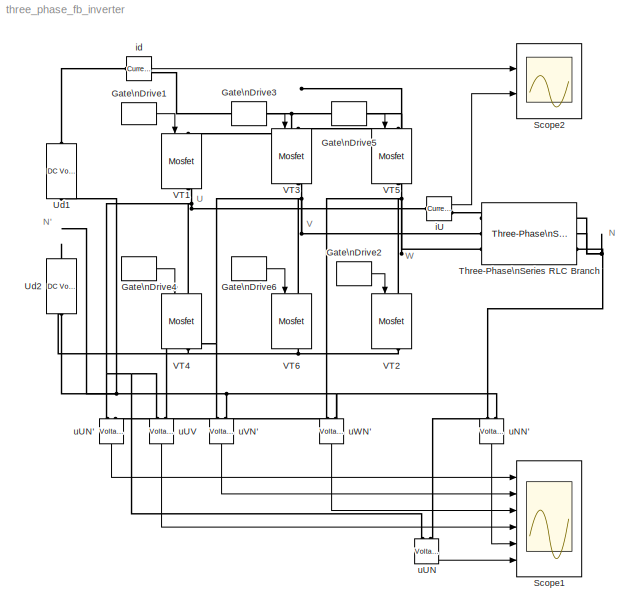
MODEL three_phase_fb_inverter
KIND model
BLOCK [DiscretePulseGenerator] Gate\nDrive1
  Period = 0.02
  Ports = [0, 1]
  PulseType = Time based
  PulseWidth = 49.5
BLOCK [DiscretePulseGenerator] Gate\nDrive2
  Period = 0.02
  PhaseDelay = 0.00333
  Ports = [0, 1]
  PulseType = Time based
  PulseWidth = 49.5
BLOCK [DiscretePulseGenerator] Gate\nDrive3
  Period = 0.02
  PhaseDelay = 0.00667
  Ports = [0, 1]
  PulseType = Time based
  PulseWidth = 49.5
BLOCK [DiscretePulseGenerator] Gate\nDrive4
  Period = 0.02
  PhaseDelay = 0.01
  Ports = [0, 1]
  PulseType = Time based
  PulseWidth = 49.5
BLOCK [DiscretePulseGenerator] Gate\nDrive5
  Period = 0.02
  PhaseDelay = 0.01333
  Ports = [0, 1]
  PulseType = Time based
  PulseWidth = 49.5
BLOCK [DiscretePulseGenerator] Gate\nDrive6
  Period = 0.02
  PhaseDelay = 0.01667
  Ports = [0, 1]
  PulseType = Time based
  PulseWidth = 49.5
BLOCK [Scope] Scope1
  DataFormat = StructureWithTime
  LimitDataPoints = off
  NumInputPorts = 6
  Ports = [6]
  SampleTime = 2e-4
  TimeRange = 0.05
  YMax = 200~200~200~300~200~200
  YMin = -200~-200~-200~-300~-200~-200
  ZoomMode = xonly
BLOCK [Scope] Scope2
  DataFormat = StructureWithTime
  LimitDataPoints = off
  NumInputPorts = 2
  Ports = [2]
  SampleTime = 2e-4
  SaveName = ScopeData1
  TimeRange = 0.05
  YMax = 20~20
  YMin = -20~-20
  ZoomMode = xonly
BLOCK [Reference] Three-Phase\nSeries RLC Branch  REF=powerlib/Elements/Three-Phase\nSeries RLC Branch
  AttributesFormatString = \\n
  Capacitance = inf
  Inductance = 0.02
  LConnTagsString = A|B|C
  LeftPortType = p1
  Measurements = Branch voltages and currents
  PhysicalDomain = powersysdomain
  Ports = [0, 0, 0, 0, 0, 3, 3]
  RConnTagsString = A|B|C
  Resistance = 10
  RightPortType = p1
  SourceBlock = powerlib/Elements/Three-Phase\nSeries RLC Branch
  SourceType = Three-Phase Series RLC Branch
  SubClassName = unknown
BLOCK [Reference] Ud1  REF=powerlib/Electrical\nSources/DC Voltage Source
  Amplitude = 100
  Measurements = None
  Ports = [0, 0, 0, 0, 0, 1, 1]
  ShowPortLabels = on
  SourceBlock = powerlib/Electrical\nSources/DC Voltage Source
  SourceType = DC Voltage Source
BLOCK [Reference] Ud2  REF=powerlib/Electrical\nSources/DC Voltage Source
  Amplitude = 100
  Measurements = None
  Ports = [0, 0, 0, 0, 0, 1, 1]
  ShowPortLabels = on
  SourceBlock = powerlib/Electrical\nSources/DC Voltage Source
  SourceType = DC Voltage Source
BLOCK [Reference] VT1  REF=powerlib/Power\nElectronics/Mosfet
  Cs = 1e-6
  IC = 0
  Lon = 1e-7
  Measurements = on
  Ports = [1, 1, 0, 0, 0, 1, 1]
  Rd = .01
  Ron = 0.01
  Rs = 5
  ShowPortLabels = on
  SourceBlock = powerlib/Power\nElectronics/Mosfet
  SourceType = Mosfet
BLOCK [Reference] VT2  REF=powerlib/Power\nElectronics/Mosfet
  Cs = 1e-6
  IC = 0
  Lon = 1e-7
  Measurements = on
  Ports = [1, 1, 0, 0, 0, 1, 1]
  Rd = .01
  Ron = 0.01
  Rs = 5
  ShowPortLabels = on
  SourceBlock = powerlib/Power\nElectronics/Mosfet
  SourceType = Mosfet
BLOCK [Reference] VT3  REF=powerlib/Power\nElectronics/Mosfet
  Cs = 1e-6
  IC = 0
  Lon = 1e-7
  Measurements = on
  Ports = [1, 1, 0, 0, 0, 1, 1]
  Rd = .01
  Ron = 0.01
  Rs = 5
  ShowPortLabels = on
  SourceBlock = powerlib/Power\nElectronics/Mosfet
  SourceType = Mosfet
BLOCK [Reference] VT4  REF=powerlib/Power\nElectronics/Mosfet
  Cs = 1e-6
  IC = 0
  Lon = 1e-7
  Measurements = on
  Ports = [1, 1, 0, 0, 0, 1, 1]
  Rd = .01
  Ron = 0.01
  Rs = 5
  ShowPortLabels = on
  SourceBlock = powerlib/Power\nElectronics/Mosfet
  SourceType = Mosfet
BLOCK [Reference] VT5  REF=powerlib/Power\nElectronics/Mosfet
  Cs = 1e-6
  IC = 0
  Lon = 1e-7
  Measurements = on
  Ports = [1, 1, 0, 0, 0, 1, 1]
  Rd = .01
  Ron = 0.01
  Rs = 5
  ShowPortLabels = on
  SourceBlock = powerlib/Power\nElectronics/Mosfet
  SourceType = Mosfet
BLOCK [Reference] VT6  REF=powerlib/Power\nElectronics/Mosfet
  Cs = 1e-6
  IC = 0
  Lon = 1e-7
  Measurements = on
  Ports = [1, 1, 0, 0, 0, 1, 1]
  Rd = .01
  Ron = 0.01
  Rs = 5
  ShowPortLabels = on
  SourceBlock = powerlib/Power\nElectronics/Mosfet
  SourceType = Mosfet
BLOCK [Reference] iU  REF=powerlib/Measurements/Current Measurement
  OutputType = Complex
  PSBequivalent = 0
  PhasorSimulation = off
  Ports = [0, 1, 0, 0, 0, 1, 1]
  ShowPortLabels = on
  SourceBlock = powerlib/Measurements/Current Measurement
  SourceType = Current Measurement
BLOCK [Reference] id  REF=powerlib/Measurements/Current Measurement
  OutputType = Complex
  PSBequivalent = 0
  PhasorSimulation = off
  Ports = [0, 1, 0, 0, 0, 1, 1]
  ShowPortLabels = on
  SourceBlock = powerlib/Measurements/Current Measurement
  SourceType = Current Measurement
BLOCK [Reference] uNN'  REF=powerlib/Measurements/Voltage Measurement
  OutputType = Complex
  PSBequivalent = 0
  PhasorSimulation = off
  Ports = [0, 1, 0, 0, 0, 2]
  ShowPortLabels = on
  SourceBlock = powerlib/Measurements/Voltage Measurement
  SourceType = Voltage Measurement
BLOCK [Reference] uUN  REF=powerlib/Measurements/Voltage Measurement
  OutputType = Complex
  PSBequivalent = 0
  PhasorSimulation = off
  Ports = [0, 1, 0, 0, 0, 2]
  ShowPortLabels = on
  SourceBlock = powerlib/Measurements/Voltage Measurement
  SourceType = Voltage Measurement
BLOCK [Reference] uUN'  REF=powerlib/Measurements/Voltage Measurement
  OutputType = Complex
  PSBequivalent = 0
  PhasorSimulation = off
  Ports = [0, 1, 0, 0, 0, 2]
  ShowPortLabels = on
  SourceBlock = powerlib/Measurements/Voltage Measurement
  SourceType = Voltage Measurement
BLOCK [Reference] uUV  REF=powerlib/Measurements/Voltage Measurement
  OutputType = Complex
  PSBequivalent = 0
  PhasorSimulation = off
  Ports = [0, 1, 0, 0, 0, 2]
  ShowPortLabels = on
  SourceBlock = powerlib/Measurements/Voltage Measurement
  SourceType = Voltage Measurement
BLOCK [Reference] uVN'  REF=powerlib/Measurements/Voltage Measurement
  OutputType = Complex
  PSBequivalent = 0
  PhasorSimulation = off
  Ports = [0, 1, 0, 0, 0, 2]
  ShowPortLabels = on
  SourceBlock = powerlib/Measurements/Voltage Measurement
  SourceType = Voltage Measurement
BLOCK [Reference] uWN'  REF=powerlib/Measurements/Voltage Measurement
  OutputType = Complex
  PSBequivalent = 0
  PhasorSimulation = off
  Ports = [0, 1, 0, 0, 0, 2]
  ShowPortLabels = on
  SourceBlock = powerlib/Measurements/Voltage Measurement
  SourceType = Voltage Measurement
ANNOTATION (root): N
ANNOTATION (root): N'
ANNOTATION (root): U
ANNOTATION (root): V
ANNOTATION (root): W
LINE Gate\nDrive1:1 -> VT1:1
LINE Gate\nDrive2:1 -> VT2:1
LINE Gate\nDrive3:1 -> VT3:1
LINE Gate\nDrive4:1 -> VT4:1
LINE Gate\nDrive5:1 -> VT5:1
LINE Gate\nDrive6:1 -> VT6:1
LINE iU:1 -> Scope2:2
LINE id:1 -> Scope2:1
LINE uNN':1 -> Scope1:5
LINE uUN':1 -> Scope1:1
LINE uUN:1 -> Scope1:6
LINE uUV:1 -> Scope1:4
LINE uVN':1 -> Scope1:2
LINE uWN':1 -> Scope1:3
PLINE Three-Phase\nSeries RLC Branch:LConn1 -- iU:RConn1
PNET net1: Three-Phase\nSeries RLC Branch:LConn2 -- VT3:RConn1 -- VT6:LConn1 -- uUV:LConn2 -- uVN':LConn1
PNET net2: Three-Phase\nSeries RLC Branch:LConn3 -- VT2:LConn1 -- VT5:RConn1 -- uWN':LConn1
PNET net3: Three-Phase\nSeries RLC Branch:RConn1 -- Three-Phase\nSeries RLC Branch:RConn2 -- Three-Phase\nSeries RLC Branch:RConn3 -- uNN':LConn1 -- uUN:LConn2
PNET net4: Ud1:LConn1 -- Ud2:RConn1 -- uNN':LConn2 -- uUN':LConn2 -- uVN':LConn2 -- uWN':LConn2
PLINE Ud1:RConn1 -- id:LConn1
PNET net5: Ud2:LConn1 -- VT2:RConn1 -- VT4:RConn1 -- VT6:RConn1
PNET net6: VT1:LConn1 -- VT3:LConn1 -- VT5:LConn1 -- id:RConn1
PNET net7: VT1:RConn1 -- VT4:LConn1 -- iU:LConn1 -- uUN':LConn1 -- uUN:LConn1 -- uUV:LConn1
note: PNET lines group multi-terminal physical nets as a canonical sorted terminal list (undirected conserving connections); 2-terminal nets keep the pairwise PLINE form
